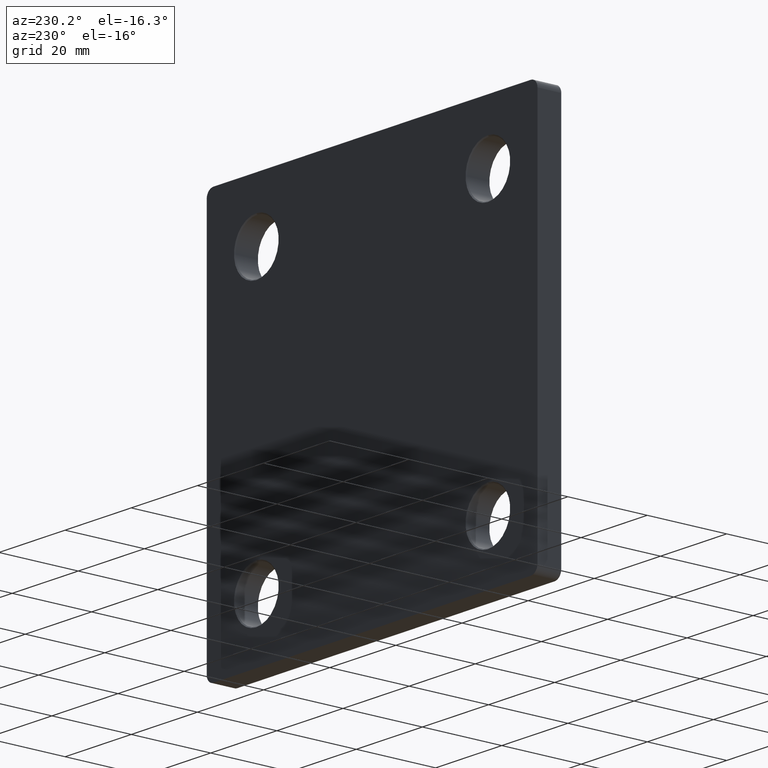
[diagram: clean part render]
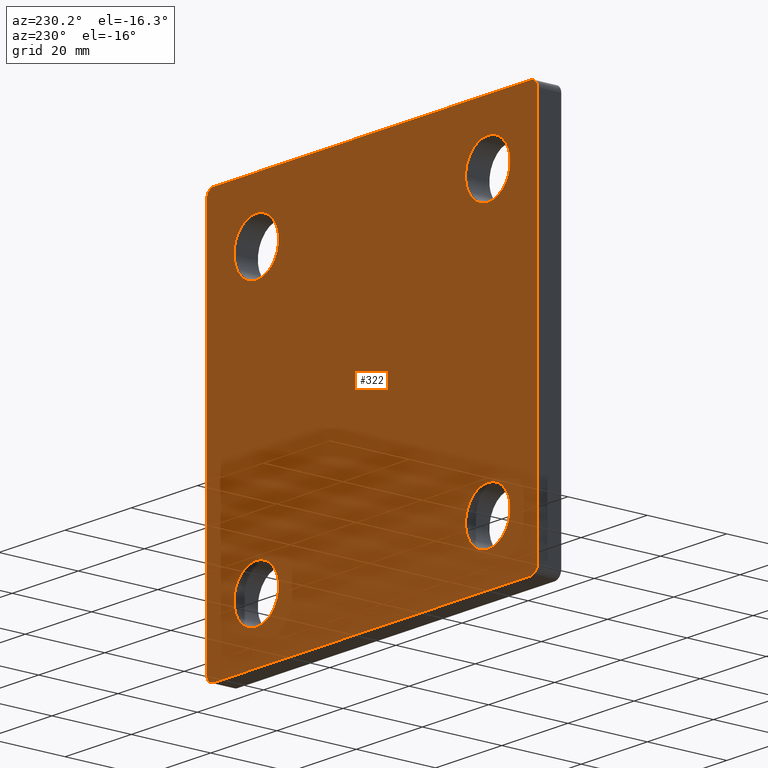
[diagram: same view with one face highlighted and labeled with its STEP entity id]
A machine part, auxiliary view. The second image highlights one B-rep face of the part: STEP entity #322.
In plain terms, the highlighted planar face has unit normal (0, 1, 0).
Its self-contained STEP definition (entity closure, byte-faithful):
#42 = VECTOR ( 'NONE', #13072, 1000.000000000000000 ) ;
#56 = DIRECTION ( 'NONE',  ( 0.000000000000000000, 0.000000000000000000, 1.000000000000000000 ) ) ;
#266 = VERTEX_POINT ( 'NONE', #8002 ) ;
#322 = ADVANCED_FACE ( 'NONE', ( #11291, #5109, #10604, #3192, #7696 ), #539, .T. ) ;
#488 = CARTESIAN_POINT ( 'NONE',  ( -35.00000000000000000, 6.000000000000000000, -28.24999999999996803 ) ) ;
#491 = DIRECTION ( 'NONE',  ( 0.000000000000000000, 1.000000000000000000, 0.000000000000000000 ) ) ;
#494 = DIRECTION ( 'NONE',  ( 1.387778780781445676E-16, 0.000000000000000000, 1.000000000000000000 ) ) ;
#513 = AXIS2_PLACEMENT_3D ( 'NONE', #1141, #10009, #13065 ) ;
#539 = PLANE ( 'NONE',  #10869 ) ;
#846 = EDGE_CURVE ( 'NONE', #9237, #5856, #10774, .T. ) ;
#863 = DIRECTION ( 'NONE',  ( 0.000000000000000000, 0.000000000000000000, 1.000000000000000000 ) ) ;
#1141 = CARTESIAN_POINT ( 'NONE',  ( 35.00000000000000000, 6.000000000000000000, -35.00000000000000000 ) ) ;
#1176 = EDGE_CURVE ( 'NONE', #14286, #266, #12811, .T. ) ;
#1190 = VERTEX_POINT ( 'NONE', #10043 ) ;
#1240 = VECTOR ( 'NONE', #3581, 1000.000000000000000 ) ;
#1310 = EDGE_LOOP ( 'NONE', ( #7195, #11881 ) ) ;
#1417 = EDGE_CURVE ( 'NONE', #13805, #14286, #8159, .T. ) ;
#1472 = ORIENTED_EDGE ( 'NONE', *, *, #7364, .T. ) ;
#1510 = ORIENTED_EDGE ( 'NONE', *, *, #11871, .T. ) ;
#1543 = CARTESIAN_POINT ( 'NONE',  ( 35.00000000000000000, 6.000000000000000000, 35.00000000000000000 ) ) ;
#1545 = DIRECTION ( 'NONE',  ( 1.000000000000000000, 0.000000000000000000, 0.000000000000000000 ) ) ;
#1579 = CARTESIAN_POINT ( 'NONE',  ( 47.99999999999998579, 6.000000000000000000, -47.99999999999999289 ) ) ;
#1739 = LINE ( 'NONE', #6084, #2787 ) ;
#1745 = VERTEX_POINT ( 'NONE', #7794 ) ;
#1827 = EDGE_LOOP ( 'NONE', ( #7387, #12382 ) ) ;
#2167 = CARTESIAN_POINT ( 'NONE',  ( -50.00000000000000000, 6.000000000000000000, -49.99999999999998579 ) ) ;
#2231 = ORIENTED_EDGE ( 'NONE', *, *, #11060, .T. ) ;
#2254 = EDGE_CURVE ( 'NONE', #2322, #3434, #8313, .T. ) ;
#2255 = ORIENTED_EDGE ( 'NONE', *, *, #3687, .T. ) ;
#2277 = EDGE_CURVE ( 'NONE', #3434, #9237, #11591, .T. ) ;
#2322 = VERTEX_POINT ( 'NONE', #8424 ) ;
#2397 = AXIS2_PLACEMENT_3D ( 'NONE', #10542, #7176, #8274 ) ;
#2413 = VERTEX_POINT ( 'NONE', #10460 ) ;
#2615 = DIRECTION ( 'NONE',  ( 0.000000000000000000, 1.000000000000000000, 0.000000000000000000 ) ) ;
#2787 = VECTOR ( 'NONE', #494, 1000.000000000000000 ) ;
#2868 = AXIS2_PLACEMENT_3D ( 'NONE', #11004, #12103, #13202 ) ;
#3148 = CARTESIAN_POINT ( 'NONE',  ( 48.00000000000001421, 6.000000000000000000, 50.00000000000000711 ) ) ;
#3192 = FACE_BOUND ( 'NONE', #1310, .T. ) ;
#3248 = DIRECTION ( 'NONE',  ( 0.000000000000000000, 0.000000000000000000, 1.000000000000000000 ) ) ;
#3372 = EDGE_LOOP ( 'NONE', ( #12336, #4467, #9716, #11531, #3443, #2255, #13883, #12532 ) ) ;
#3434 = VERTEX_POINT ( 'NONE', #3148 ) ;
#3443 = ORIENTED_EDGE ( 'NONE', *, *, #3659, .T. ) ;
#3447 = AXIS2_PLACEMENT_3D ( 'NONE', #1543, #12491, #3845 ) ;
#3509 = AXIS2_PLACEMENT_3D ( 'NONE', #5521, #11928, #10836 ) ;
#3567 = VERTEX_POINT ( 'NONE', #4846 ) ;
#3581 = DIRECTION ( 'NONE',  ( -1.000000000000000000, -0.000000000000000000, 6.938893903907229610E-17 ) ) ;
#3659 = EDGE_CURVE ( 'NONE', #266, #1745, #1739, .T. ) ;
#3687 = EDGE_CURVE ( 'NONE', #1745, #2322, #13142, .T. ) ;
#3738 = EDGE_LOOP ( 'NONE', ( #2231, #12304 ) ) ;
#3828 = DIRECTION ( 'NONE',  ( 0.000000000000000000, 1.000000000000000000, 0.000000000000000000 ) ) ;
#3845 = DIRECTION ( 'NONE',  ( 0.000000000000000000, 0.000000000000000000, 1.000000000000000000 ) ) ;
#4266 = VERTEX_POINT ( 'NONE', #8142 ) ;
#4417 = DIRECTION ( 'NONE',  ( 0.000000000000000000, 1.000000000000000000, 0.000000000000000000 ) ) ;
#4467 = ORIENTED_EDGE ( 'NONE', *, *, #13644, .T. ) ;
#4489 = CARTESIAN_POINT ( 'NONE',  ( 49.99999999999998579, 6.000000000000000000, -49.99999999999999289 ) ) ;
#4498 = CARTESIAN_POINT ( 'NONE',  ( -35.00000000000000000, 6.000000000000000000, 35.00000000000000000 ) ) ;
#4785 = DIRECTION ( 'NONE',  ( 0.000000000000000000, 0.000000000000000000, 1.000000000000000000 ) ) ;
#4846 = CARTESIAN_POINT ( 'NONE',  ( 35.00000000000000000, 6.000000000000000000, -28.24999999999996803 ) ) ;
#4874 = VERTEX_POINT ( 'NONE', #8104 ) ;
#5109 = FACE_BOUND ( 'NONE', #11111, .T. ) ;
#5115 = AXIS2_PLACEMENT_3D ( 'NONE', #12895, #4417, #56 ) ;
#5124 = CARTESIAN_POINT ( 'NONE',  ( 35.00000000000000000, 6.000000000000000000, 28.24999999999996803 ) ) ;
#5208 = DIRECTION ( 'NONE',  ( -0.000000000000000000, -1.000000000000000000, -0.000000000000000000 ) ) ;
#5213 = CIRCLE ( 'NONE', #3509, 6.750000000000033751 ) ;
#5268 = VERTEX_POINT ( 'NONE', #488 ) ;
#5398 = EDGE_CURVE ( 'NONE', #1190, #7829, #5213, .T. ) ;
#5521 = CARTESIAN_POINT ( 'NONE',  ( 35.00000000000000000, 6.000000000000000000, 35.00000000000000000 ) ) ;
#5616 = AXIS2_PLACEMENT_3D ( 'NONE', #1579, #3828, #12633 ) ;
#5856 = VERTEX_POINT ( 'NONE', #8668 ) ;
#5917 = VERTEX_POINT ( 'NONE', #12064 ) ;
#6084 = CARTESIAN_POINT ( 'NONE',  ( -50.00000000000000000, 6.000000000000000000, -49.99999999999998579 ) ) ;
#6264 = VECTOR ( 'NONE', #1545, 1000.000000000000000 ) ;
#6564 = EDGE_CURVE ( 'NONE', #2413, #5917, #8636, .T. ) ;
#6897 = AXIS2_PLACEMENT_3D ( 'NONE', #14277, #8935, #3248 ) ;
#6953 = AXIS2_PLACEMENT_3D ( 'NONE', #11887, #12985, #863 ) ;
#7140 = CARTESIAN_POINT ( 'NONE',  ( 0.000000000000000000, 6.000000000000000000, 0.000000000000000000 ) ) ;
#7176 = DIRECTION ( 'NONE',  ( -0.000000000000000000, -1.000000000000000000, -0.000000000000000000 ) ) ;
#7195 = ORIENTED_EDGE ( 'NONE', *, *, #8658, .T. ) ;
#7364 = EDGE_CURVE ( 'NONE', #3567, #4266, #12909, .T. ) ;
#7387 = ORIENTED_EDGE ( 'NONE', *, *, #5398, .T. ) ;
#7526 = CIRCLE ( 'NONE', #5616, 2.000000000000001776 ) ;
#7572 = CIRCLE ( 'NONE', #2397, 6.750000000000033751 ) ;
#7696 = FACE_OUTER_BOUND ( 'NONE', #3372, .T. ) ;
#7701 = EDGE_CURVE ( 'NONE', #4874, #5268, #11870, .T. ) ;
#7738 = CARTESIAN_POINT ( 'NONE',  ( 47.99999999999995737, 6.000000000000000000, -49.99999999999999289 ) ) ;
#7794 = CARTESIAN_POINT ( 'NONE',  ( -49.99999999999998579, 6.000000000000000000, 48.00000000000001421 ) ) ;
#7829 = VERTEX_POINT ( 'NONE', #5124 ) ;
#8002 = CARTESIAN_POINT ( 'NONE',  ( -50.00000000000000000, 6.000000000000000000, -47.99999999999998579 ) ) ;
#8104 = CARTESIAN_POINT ( 'NONE',  ( -35.00000000000000000, 6.000000000000000000, -41.75000000000003553 ) ) ;
#8142 = CARTESIAN_POINT ( 'NONE',  ( 35.00000000000000000, 6.000000000000000000, -41.75000000000003553 ) ) ;
#8159 = LINE ( 'NONE', #2167, #1240 ) ;
#8274 = DIRECTION ( 'NONE',  ( 0.000000000000000000, 0.000000000000000000, 1.000000000000000000 ) ) ;
#8313 = LINE ( 'NONE', #9244, #6264 ) ;
#8347 = CIRCLE ( 'NONE', #3447, 6.750000000000033751 ) ;
#8424 = CARTESIAN_POINT ( 'NONE',  ( -47.99999999999998579, 6.000000000000000000, 50.00000000000000711 ) ) ;
#8435 = CIRCLE ( 'NONE', #2868, 6.750000000000033751 ) ;
#8636 = CIRCLE ( 'NONE', #12639, 6.750000000000033751 ) ;
#8658 = EDGE_CURVE ( 'NONE', #5917, #2413, #7572, .T. ) ;
#8668 = CARTESIAN_POINT ( 'NONE',  ( 49.99999999999998579, 6.000000000000000000, -47.99999999999999289 ) ) ;
#8826 = DIRECTION ( 'NONE',  ( -0.000000000000000000, -1.000000000000000000, -0.000000000000000000 ) ) ;
#8935 = DIRECTION ( 'NONE',  ( 0.000000000000000000, 1.000000000000000000, 0.000000000000000000 ) ) ;
#9196 = CARTESIAN_POINT ( 'NONE',  ( -48.00000000000000000, 6.000000000000000000, -49.99999999999998579 ) ) ;
#9237 = VERTEX_POINT ( 'NONE', #10440 ) ;
#9244 = CARTESIAN_POINT ( 'NONE',  ( -49.99999999999998579, 6.000000000000000000, 50.00000000000000711 ) ) ;
#9378 = DIRECTION ( 'NONE',  ( 0.000000000000000000, 0.000000000000000000, 1.000000000000000000 ) ) ;
#9523 = CARTESIAN_POINT ( 'NONE',  ( -35.00000000000000000, 6.000000000000000000, -35.00000000000000000 ) ) ;
#9630 = CIRCLE ( 'NONE', #6953, 6.750000000000033751 ) ;
#9716 = ORIENTED_EDGE ( 'NONE', *, *, #1417, .T. ) ;
#10009 = DIRECTION ( 'NONE',  ( -0.000000000000000000, -1.000000000000000000, -0.000000000000000000 ) ) ;
#10043 = CARTESIAN_POINT ( 'NONE',  ( 35.00000000000000000, 6.000000000000000000, 41.75000000000003553 ) ) ;
#10440 = CARTESIAN_POINT ( 'NONE',  ( 50.00000000000001421, 6.000000000000000000, 48.00000000000000711 ) ) ;
#10460 = CARTESIAN_POINT ( 'NONE',  ( -35.00000000000000000, 6.000000000000000000, 28.24999999999996803 ) ) ;
#10542 = CARTESIAN_POINT ( 'NONE',  ( -35.00000000000000000, 6.000000000000000000, 35.00000000000000000 ) ) ;
#10604 = FACE_BOUND ( 'NONE', #3738, .T. ) ;
#10774 = LINE ( 'NONE', #4489, #42 ) ;
#10836 = DIRECTION ( 'NONE',  ( 0.000000000000000000, 0.000000000000000000, 1.000000000000000000 ) ) ;
#10869 = AXIS2_PLACEMENT_3D ( 'NONE', #7140, #491, #13676 ) ;
#11004 = CARTESIAN_POINT ( 'NONE',  ( -35.00000000000000000, 6.000000000000000000, -35.00000000000000000 ) ) ;
#11035 = DIRECTION ( 'NONE',  ( 0.000000000000000000, 0.000000000000000000, 1.000000000000000000 ) ) ;
#11060 = EDGE_CURVE ( 'NONE', #5268, #4874, #8435, .T. ) ;
#11111 = EDGE_LOOP ( 'NONE', ( #1472, #1510 ) ) ;
#11291 = FACE_BOUND ( 'NONE', #1827, .T. ) ;
#11314 = CARTESIAN_POINT ( 'NONE',  ( 48.00000000000001421, 6.000000000000000000, 48.00000000000000711 ) ) ;
#11516 = AXIS2_PLACEMENT_3D ( 'NONE', #11314, #2615, #4785 ) ;
#11531 = ORIENTED_EDGE ( 'NONE', *, *, #1176, .T. ) ;
#11591 = CIRCLE ( 'NONE', #11516, 2.000000000000001776 ) ;
#11870 = CIRCLE ( 'NONE', #12548, 6.750000000000033751 ) ;
#11871 = EDGE_CURVE ( 'NONE', #4266, #3567, #9630, .T. ) ;
#11881 = ORIENTED_EDGE ( 'NONE', *, *, #6564, .T. ) ;
#11887 = CARTESIAN_POINT ( 'NONE',  ( 35.00000000000000000, 6.000000000000000000, -35.00000000000000000 ) ) ;
#11928 = DIRECTION ( 'NONE',  ( -0.000000000000000000, -1.000000000000000000, -0.000000000000000000 ) ) ;
#12064 = CARTESIAN_POINT ( 'NONE',  ( -35.00000000000000000, 6.000000000000000000, 41.75000000000003553 ) ) ;
#12103 = DIRECTION ( 'NONE',  ( -0.000000000000000000, -1.000000000000000000, -0.000000000000000000 ) ) ;
#12304 = ORIENTED_EDGE ( 'NONE', *, *, #7701, .T. ) ;
#12336 = ORIENTED_EDGE ( 'NONE', *, *, #846, .T. ) ;
#12382 = ORIENTED_EDGE ( 'NONE', *, *, #14329, .T. ) ;
#12491 = DIRECTION ( 'NONE',  ( -0.000000000000000000, -1.000000000000000000, -0.000000000000000000 ) ) ;
#12532 = ORIENTED_EDGE ( 'NONE', *, *, #2277, .T. ) ;
#12548 = AXIS2_PLACEMENT_3D ( 'NONE', #9523, #5208, #9378 ) ;
#12633 = DIRECTION ( 'NONE',  ( 0.000000000000000000, 0.000000000000000000, 1.000000000000000000 ) ) ;
#12639 = AXIS2_PLACEMENT_3D ( 'NONE', #4498, #8826, #11035 ) ;
#12811 = CIRCLE ( 'NONE', #6897, 2.000000000000001776 ) ;
#12895 = CARTESIAN_POINT ( 'NONE',  ( -47.99999999999998579, 6.000000000000000000, 48.00000000000000711 ) ) ;
#12909 = CIRCLE ( 'NONE', #513, 6.750000000000033751 ) ;
#12985 = DIRECTION ( 'NONE',  ( -0.000000000000000000, -1.000000000000000000, -0.000000000000000000 ) ) ;
#13065 = DIRECTION ( 'NONE',  ( 0.000000000000000000, 0.000000000000000000, 1.000000000000000000 ) ) ;
#13072 = DIRECTION ( 'NONE',  ( -2.775557561562891351E-16, -0.000000000000000000, -1.000000000000000000 ) ) ;
#13142 = CIRCLE ( 'NONE', #5115, 2.000000000000001776 ) ;
#13202 = DIRECTION ( 'NONE',  ( 0.000000000000000000, 0.000000000000000000, 1.000000000000000000 ) ) ;
#13644 = EDGE_CURVE ( 'NONE', #5856, #13805, #7526, .T. ) ;
#13676 = DIRECTION ( 'NONE',  ( 0.000000000000000000, -0.000000000000000000, 1.000000000000000000 ) ) ;
#13805 = VERTEX_POINT ( 'NONE', #7738 ) ;
#13883 = ORIENTED_EDGE ( 'NONE', *, *, #2254, .T. ) ;
#14277 = CARTESIAN_POINT ( 'NONE',  ( -48.00000000000000000, 6.000000000000000000, -47.99999999999998579 ) ) ;
#14286 = VERTEX_POINT ( 'NONE', #9196 ) ;
#14329 = EDGE_CURVE ( 'NONE', #7829, #1190, #8347, .T. ) ;